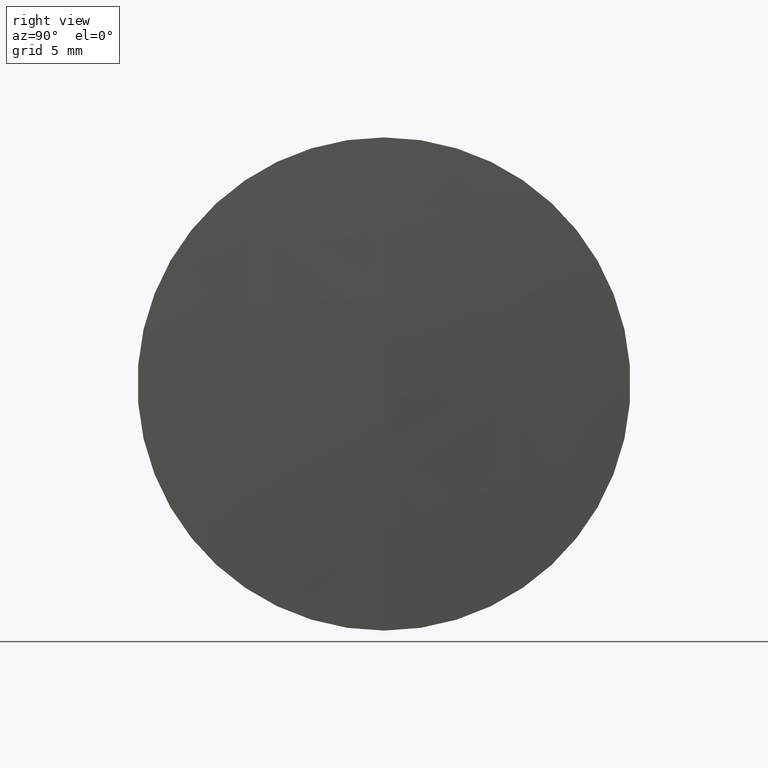
[diagram: clean part render]
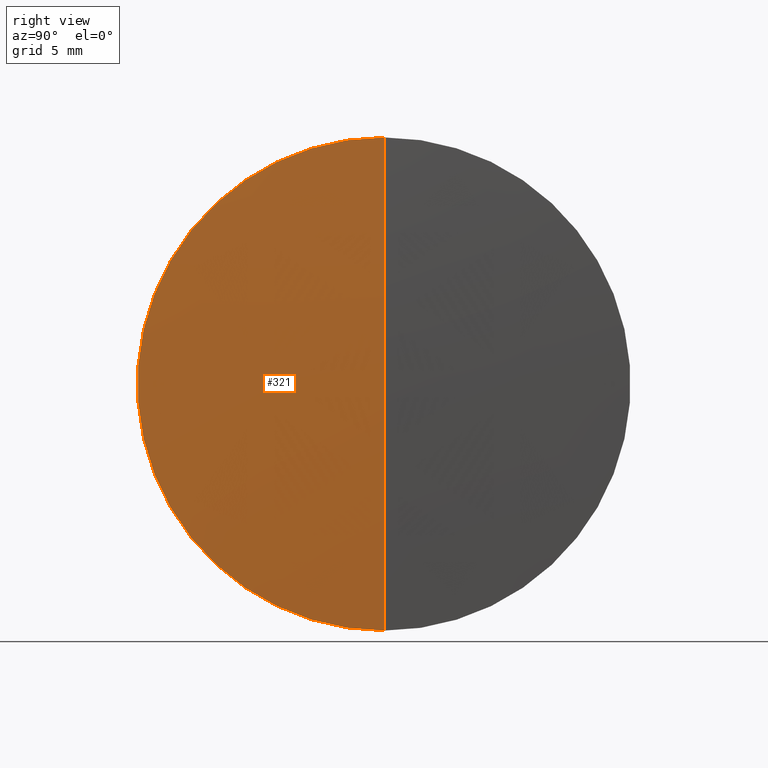
[diagram: same view with one face highlighted and labeled with its STEP entity id]
A machine part, right view. The second image highlights one B-rep face of the part: STEP entity #321.
In plain terms, the highlighted spherical surface has radius 291.1 mm.
Its self-contained STEP definition (entity closure, byte-faithful):
#9 = VERTEX_POINT ( 'NONE', #72 ) ;
#29 = VERTEX_POINT ( 'NONE', #283 ) ;
#35 = ORIENTED_EDGE ( 'NONE', *, *, #299, .T. ) ;
#46 = CARTESIAN_POINT ( 'NONE',  ( -55.20415419158062100, 0.0000000000000000000, 0.0000000000000000000 ) ) ;
#62 = AXIS2_PLACEMENT_3D ( 'NONE', #234, #277, #347 ) ;
#64 = DIRECTION ( 'NONE',  ( 0.0000000000000000000, 0.0000000000000000000, -1.000000000000000000 ) ) ;
#72 = CARTESIAN_POINT ( 'NONE',  ( 235.6186784746321600, 1.555301434917140800E-015, -12.70000000000001700 ) ) ;
#80 = DIRECTION ( 'NONE',  ( 0.0000000000000000000, -1.224646799147353200E-016, 1.000000000000000000 ) ) ;
#106 = CARTESIAN_POINT ( 'NONE',  ( 235.8958458084193500, 0.0000000000000000000, 1.782473416158972500E-014 ) ) ;
#120 = EDGE_LOOP ( 'NONE', ( #339, #35, #262 ) ) ;
#128 = AXIS2_PLACEMENT_3D ( 'NONE', #46, #334, #328 ) ;
#133 = EDGE_CURVE ( 'NONE', #243, #9, #317, .T. ) ;
#164 = FACE_OUTER_BOUND ( 'NONE', #120, .T. ) ;
#171 = SPHERICAL_SURFACE ( 'NONE', #128, 291.0999999999999700 ) ;
#194 = AXIS2_PLACEMENT_3D ( 'NONE', #250, #290, #80 ) ;
#213 = AXIS2_PLACEMENT_3D ( 'NONE', #276, #227, #64 ) ;
#222 = CIRCLE ( 'NONE', #62, 12.70000000000001700 ) ;
#227 = DIRECTION ( 'NONE',  ( 0.0000000000000000000, -1.000000000000000000, 0.0000000000000000000 ) ) ;
#234 = CARTESIAN_POINT ( 'NONE',  ( 235.6186784746321600, 0.0000000000000000000, 0.0000000000000000000 ) ) ;
#243 = VERTEX_POINT ( 'NONE', #106 ) ;
#250 = CARTESIAN_POINT ( 'NONE',  ( -55.20415419158062100, 0.0000000000000000000, 0.0000000000000000000 ) ) ;
#255 = EDGE_CURVE ( 'NONE', #9, #29, #222, .T. ) ;
#262 = ORIENTED_EDGE ( 'NONE', *, *, #255, .F. ) ;
#276 = CARTESIAN_POINT ( 'NONE',  ( -55.20415419158062100, 0.0000000000000000000, 0.0000000000000000000 ) ) ;
#277 = DIRECTION ( 'NONE',  ( -1.000000000000000000, -0.0000000000000000000, -0.0000000000000000000 ) ) ;
#283 = CARTESIAN_POINT ( 'NONE',  ( 235.6186784746321600, 0.0000000000000000000, 12.70000000000001700 ) ) ;
#290 = DIRECTION ( 'NONE',  ( -0.0000000000000000000, 1.000000000000000000, 1.224646799147353200E-016 ) ) ;
#299 = EDGE_CURVE ( 'NONE', #243, #29, #330, .T. ) ;
#317 = CIRCLE ( 'NONE', #194, 291.0999999999999700 ) ;
#321 = ADVANCED_FACE ( 'NONE', ( #164 ), #171, .T. ) ;
#328 = DIRECTION ( 'NONE',  ( 0.0000000000000000000, 0.0000000000000000000, 1.000000000000000000 ) ) ;
#330 = CIRCLE ( 'NONE', #213, 291.0999999999999700 ) ;
#334 = DIRECTION ( 'NONE',  ( 0.0000000000000000000, 1.000000000000000000, 0.0000000000000000000 ) ) ;
#339 = ORIENTED_EDGE ( 'NONE', *, *, #133, .F. ) ;
#347 = DIRECTION ( 'NONE',  ( 0.0000000000000000000, 0.0000000000000000000, 1.000000000000000000 ) ) ;